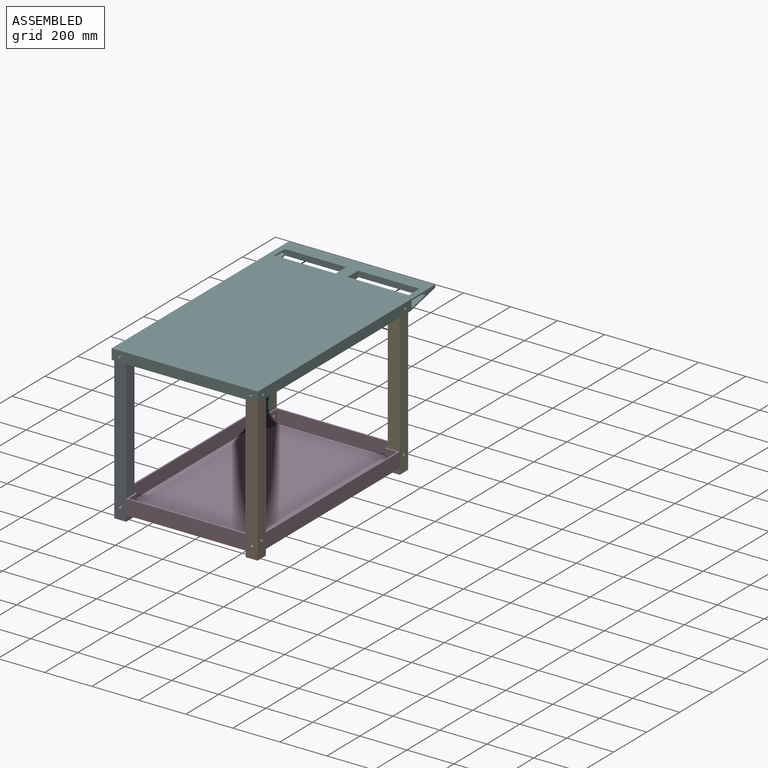
[diagram: assembled view]
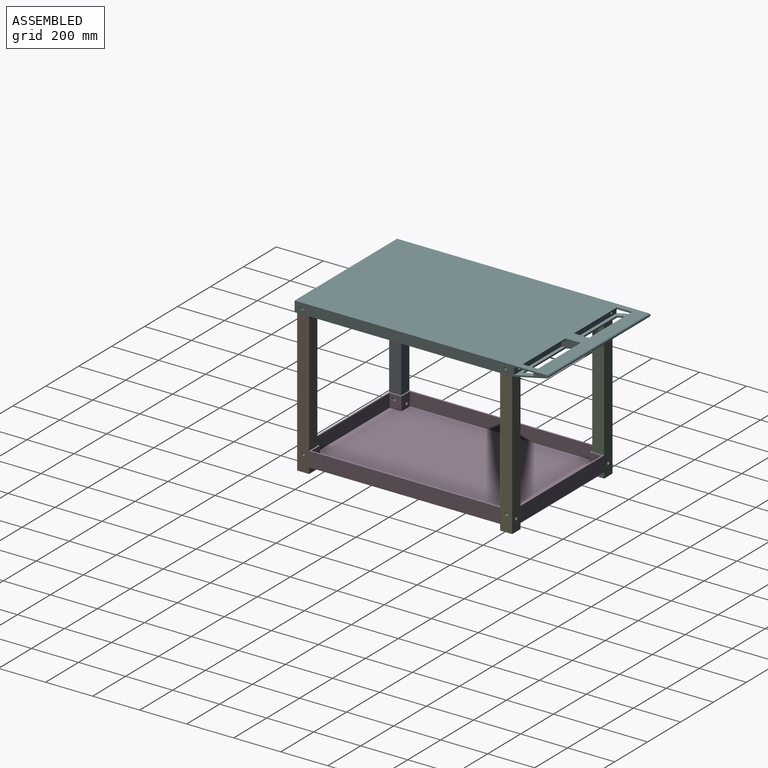
[diagram: assembled view, second angle]
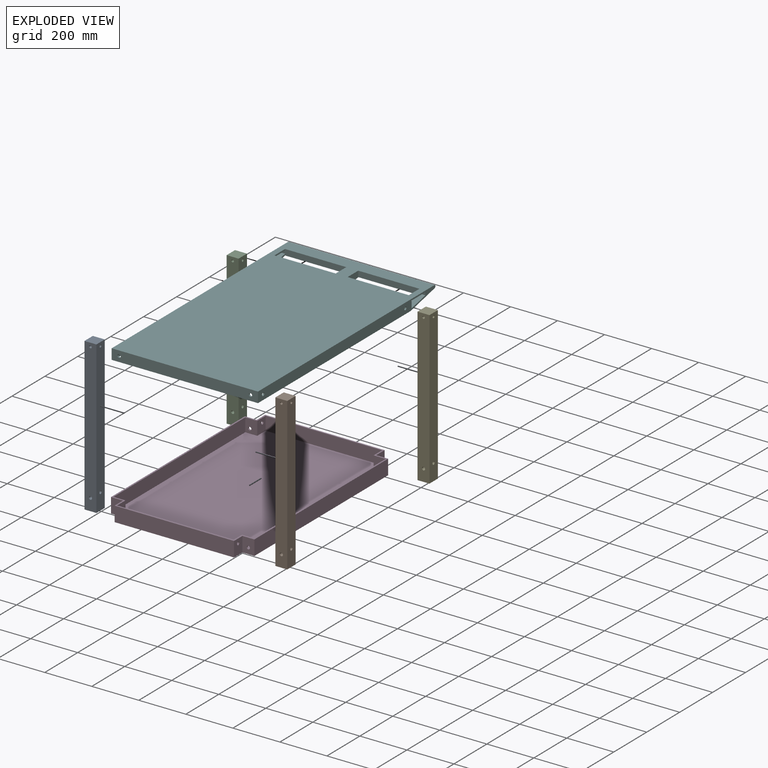
[diagram: exploded view]
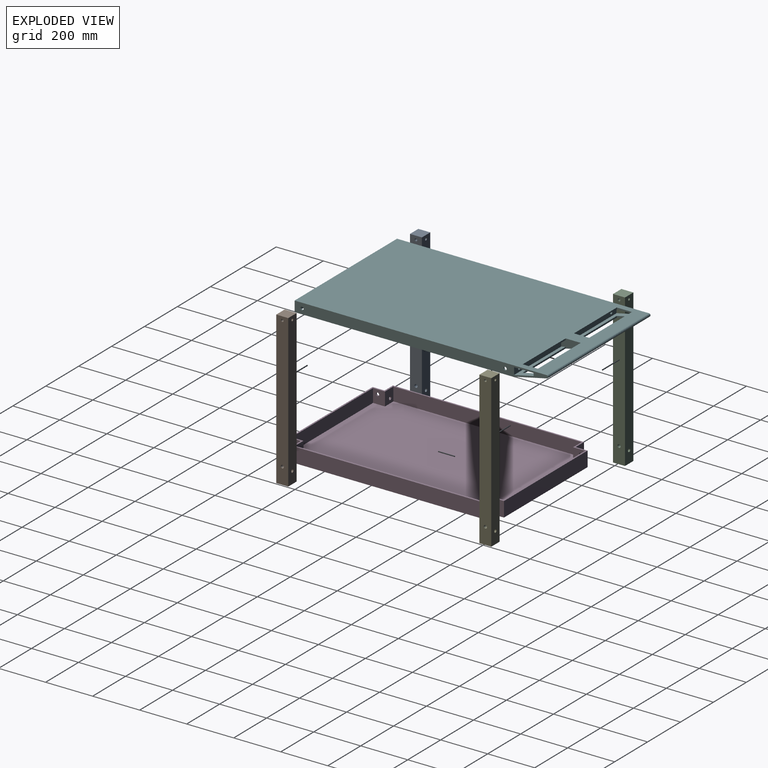
[diagram: exploded view, second angle]
ASSEMBLY  parts=6 mates=5
PART A: 18 faces, bbox 50.8x50.8x647.7 mm
  f0: plane 647.7x50.8mm, normal (-1,0,0), area 32670mm2, adj f1,f3,f4,f5,f6,f14
  f1: plane 647.7x50.8mm, normal (0,1,0), area 32670mm2, adj f0,f2,f4,f5,f9,f16
  f2: plane 647.7x50.8mm, normal (1,0,0), area 32670mm2, adj f1,f3,f4,f5,f6,f10
  f3: plane 647.7x50.8mm, normal (0,-1,0), area 32670mm2, adj f0,f2,f4,f5,f9,f12
  f4: plane 50.8x50.8mm, normal (0,0,-1), area 2192.7mm2, adj f0,f1,f2,f3,f7
  f5: plane 50.8x50.8mm, normal (0,0,1), area 2580.6mm2, adj f0,f1,f2,f3
  f6: cylinder r=6.75mm len=50.8mm, axis (1,0,0), area 2153.3mm2, adj f0,f2
  f7: cylinder r=11.11mm len=29.06mm, axis (0,0,-1), area 2029.3mm2, adj f4,f8
  f8: cone r=0mm half-angle=59deg, axis (0,0,-1), area 452.6mm2, adj f7
  f9: cylinder r=6.75mm len=50.8mm, axis (0,-1,0), area 2153.3mm2, adj f1,f3
  f10: cylinder r=5.36mm len=19.05mm, axis (1,0,0), area 641.3mm2, adj f2,f11
  f11: cone r=0mm half-angle=59deg, axis (1,0,0), area 105.2mm2, adj f10
  f12: cylinder r=5.36mm len=19.05mm, axis (0,-1,0), area 641.3mm2, adj f3,f13
  f13: cone r=0mm half-angle=59deg, axis (0,-1,0), area 105.2mm2, adj f12
  f14: cylinder r=5.36mm len=19.05mm, axis (-1,0,0), area 641.3mm2, adj f0,f15
  f15: cone r=0mm half-angle=59deg, axis (-1,0,0), area 105.2mm2, adj f14
  f16: cylinder r=5.36mm len=19.05mm, axis (0,1,0), area 641.3mm2, adj f1,f17
  f17: cone r=0mm half-angle=59deg, axis (0,1,0), area 105.2mm2, adj f16
PART B: same geometry as A
PART C: same geometry as A
PART D: 35 faces, bbox 609.6x914.4x63.5 mm
  f0: plane 508x63.5mm, normal (0,-1,0), area 32258mm2, adj f4,f5,f6,f13
  f1: plane 812.8x63.5mm, normal (-1,0,0), area 51612.8mm2, adj f4,f5,f9,f12
  f2: plane 508x63.5mm, normal (0,1,0), area 32258mm2, adj f4,f5,f8,f11
  f3: plane 812.8x63.5mm, normal (1,0,0), area 51612.8mm2, adj f4,f5,f7,f10
  f4: plane 914.4x609.6mm, normal (0,0,1), area 19193.5mm2, adj f0,f1,f2,f3,f6,f7,f8,f9
  f5: plane 914.4x609.6mm, normal (0,0,-1), area 547095.7mm2, adj f0,f1,f2,f3,f6,f7,f8,f9
  f6: plane 63.5x50.8mm, normal (1,0,0), area 3082.8mm2, adj f0,f4,f5,f7,f28
  f7: plane 63.5x50.8mm, normal (0,-1,0), area 3082.8mm2, adj f3,f4,f5,f6,f34
  f8: plane 63.5x50.8mm, normal (-1,0,0), area 3082.8mm2, adj f2,f4,f5,f9,f30
  f9: plane 63.5x50.8mm, normal (0,1,0), area 3082.8mm2, adj f1,f4,f5,f8,f32
  f10: plane 63.5x50.8mm, normal (0,1,0), area 3082.8mm2, adj f3,f4,f5,f11,f33
  f11: plane 63.5x50.8mm, normal (1,0,0), area 3082.8mm2, adj f2,f4,f5,f10,f29
  f12: plane 63.5x50.8mm, normal (0,-1,0), area 3082.8mm2, adj f1,f4,f5,f13,f31
  f13: plane 63.5x50.8mm, normal (-1,0,0), area 3082.8mm2, adj f0,f4,f5,f12,f27
  f14: plane 495.3x57.15mm, normal (0,1,0), area 28306.4mm2, adj f4,f18,f19,f26
  f15: plane 800.1x57.15mm, normal (1,0,0), area 45725.7mm2, adj f4,f18,f22,f25
  f16: plane 495.3x57.15mm, normal (0,-1,0), area 28306.4mm2, adj f4,f18,f21,f24
  f17: plane 800.1x57.15mm, normal (-1,0,0), area 45725.7mm2, adj f4,f18,f20,f23
  f18: plane 901.7x596.9mm, normal (0,0,1), area 527902.2mm2, adj f14,f15,f16,f17,f19,f20,f21,f22
  f19: plane 57.15x50.8mm, normal (-1,0,0), area 2760.2mm2, adj f4,f14,f18,f20,f28
  f20: plane 57.15x50.8mm, normal (0,1,0), area 2760.2mm2, adj f4,f17,f18,f19,f34
  f21: plane 57.15x50.8mm, normal (1,0,0), area 2760.2mm2, adj f4,f16,f18,f22,f30
  f22: plane 57.15x50.8mm, normal (0,-1,0), area 2760.2mm2, adj f4,f15,f18,f21,f32
  f23: plane 57.15x50.8mm, normal (0,-1,0), area 2760.2mm2, adj f4,f17,f18,f24,f33
  f24: plane 57.15x50.8mm, normal (-1,0,0), area 2760.2mm2, adj f4,f16,f18,f23,f29
  f25: plane 57.15x50.8mm, normal (0,1,0), area 2760.2mm2, adj f4,f15,f18,f26,f31
  f26: plane 57.15x50.8mm, normal (1,0,0), area 2760.2mm2, adj f4,f14,f18,f25,f27
  f27: cylinder r=6.75mm len=13.49mm, axis (1,0,0), area 269.2mm2, adj f13,f26
  f28: cylinder r=6.75mm len=13.49mm, axis (1,0,0), area 269.2mm2, adj f6,f19
  f29: cylinder r=6.75mm len=13.49mm, axis (1,0,0), area 269.2mm2, adj f11,f24
  f30: cylinder r=6.75mm len=13.49mm, axis (1,0,0), area 269.2mm2, adj f8,f21
  f31: cylinder r=6.75mm len=13.49mm, axis (0,-1,0), area 269.2mm2, adj f12,f25
  f32: cylinder r=6.75mm len=13.49mm, axis (0,-1,0), area 269.2mm2, adj f9,f22
  f33: cylinder r=6.75mm len=13.49mm, axis (0,-1,0), area 269.2mm2, adj f10,f23
  f34: cylinder r=6.75mm len=13.49mm, axis (0,-1,0), area 269.2mm2, adj f7,f20
PART E: same geometry as A
PART F: 38 faces, bbox 622.3x1077.9x44.5 mm
  f0: plane 1077.91x44.45mm, normal (1,0,0), area 43367.7mm2, adj f2,f3,f4,f10,f11,f12,f13,f16
  f1: plane 1077.91x44.45mm, normal (-1,0,0), area 43367.7mm2, adj f2,f3,f4,f11,f20,f21,f22,f23
  f2: plane 622.3x44.45mm, normal (0,-1,0), area 27375.3mm2, adj f0,f1,f3,f4,f34,f36
  f3: plane 927.1x622.3mm, normal (0,0,-1), area 19516.1mm2, adj f0,f1,f2,f5,f6,f7,f8,f11
  f4: plane 1071.56x622.3mm, normal (0,0,1), area 633356.5mm2, adj f0,f1,f2,f14,f15,f16,f17,f20
  f5: plane 914.4x38.1mm, normal (-1,0,0), area 34552.7mm2, adj f3,f6,f8,f9,f31,f33
  f6: plane 609.6x38.1mm, normal (0,-1,0), area 22939.8mm2, adj f3,f5,f7,f9,f35,f37
  f7: plane 914.4x38.1mm, normal (1,0,0), area 34552.7mm2, adj f3,f6,f8,f9,f30,f32
  f8: plane 609.6x38.1mm, normal (0,1,0), area 22939.8mm2, adj f3,f5,f7,f9,f34,f36
  f9: plane 914.4x609.6mm, normal (0,0,-1), area 557418.2mm2, adj f5,f6,f7,f8
  f10: plane 285.75x83.33mm, normal (0,-0.21,0.98), area 7243.7mm2, adj f0,f13,f16,f17,f18,f19
  f11: plane 622.3x145.81mm, normal (0,0.21,-0.98), area 58620.8mm2, adj f0,f1,f3,f16,f17,f18,f19,f20
  f12: plane 285.75x83.33mm, normal (0,0,-1), area 7076.4mm2, adj f0,f13,f14,f15,f16,f17
  f13: plane 285.75x30.21mm, normal (0,1,0), area 8489.8mm2, adj f0,f10,f12,f17,f35
  f14: plane 64.28x6.35mm, normal (-1,0,0), area 408.2mm2, adj f4,f12,f15,f16
  f15: plane 260.35x6.35mm, normal (0,1,0), area 1653.2mm2, adj f4,f12,f14,f17
  f16: plane 285.75x24.83mm, normal (0,-1,0), area 6769.2mm2, adj f0,f4,f10,f11,f12,f14,f17,f19
  f17: plane 83.33x38.89mm, normal (1,0,0), area 2584.1mm2, adj f4,f10,f11,f12,f13,f15,f16,f18
  f18: plane 260.35x6.5mm, normal (0,1,0), area 1692.3mm2, adj f10,f11,f17,f19
  f19: plane 64.28x20.56mm, normal (-1,0,0), area 417.9mm2, adj f10,f11,f16,f18
  f20: cylinder r=6.35mm len=622.3mm, axis (-1,0,0), area 11563.3mm2, adj f0,f1,f4,f11
  f21: plane 285.75x83.33mm, normal (0,-0.21,0.98), area 7243.7mm2, adj f1,f23,f26,f27,f28,f29
  f22: plane 285.75x83.33mm, normal (0,0,-1), area 7076.4mm2, adj f1,f23,f24,f25,f26,f27
  f23: plane 285.75x30.21mm, normal (0,1,0), area 8489.8mm2, adj f1,f21,f22,f27,f37
  f24: plane 64.28x6.35mm, normal (1,0,0), area 408.2mm2, adj f4,f22,f25,f26
  f25: plane 260.35x6.35mm, normal (0,1,0), area 1653.2mm2, adj f4,f22,f24,f27
  f26: plane 285.75x24.83mm, normal (0,-1,0), area 6769.2mm2, adj f1,f4,f11,f21,f22,f24,f27,f29
  f27: plane 83.33x38.89mm, normal (-1,0,0), area 2584.1mm2, adj f4,f11,f21,f22,f23,f25,f26,f28
  f28: plane 260.35x6.5mm, normal (0,1,0), area 1692.3mm2, adj f11,f21,f27,f29
  f29: plane 64.28x20.56mm, normal (1,0,0), area 417.9mm2, adj f11,f21,f26,f28
  f30: cylinder r=6.75mm len=13.49mm, axis (1,0,0), area 269.2mm2, adj f1,f7
  f31: cylinder r=6.75mm len=13.49mm, axis (1,0,0), area 269.2mm2, adj f0,f5
  f32: cylinder r=6.75mm len=13.49mm, axis (1,0,0), area 269.2mm2, adj f1,f7
  f33: cylinder r=6.75mm len=13.49mm, axis (1,0,0), area 269.2mm2, adj f0,f5
  f34: cylinder r=6.75mm len=13.49mm, axis (0,1,0), area 269.2mm2, adj f2,f8
  f35: cylinder r=6.75mm len=13.49mm, axis (0,1,0), area 538.3mm2, adj f6,f13
  f36: cylinder r=6.75mm len=13.49mm, axis (0,1,0), area 269.2mm2, adj f2,f8
  f37: cylinder r=6.75mm len=13.49mm, axis (0,1,0), area 538.3mm2, adj f6,f23
PLACE A rot(axis=(0,0,1),180deg) t=(0,-863.6,0)mm
PLACE B at identity
PLACE C rot(axis=(0,0,1),180deg) t=(0,0,0)mm
PLACE D at identity
PLACE E rot(axis=(0,0,-1),180deg) t=(558.8,0,0)mm
PLACE F at identity fixed
MATE fastened B.f10 <-> F.f30  axis (1,0,0) through (304.8,-431.8,-15.88)mm
MATE fastened C.f10 <-> F.f32  axis (-1,0,0) through (-304.8,431.8,-15.88)mm
MATE fastened D.f33 <-> B.f9  axis (0,-1,0) through (279.4,-406.4,-596.9)mm
MATE fastened E.f10 <-> F.f32  axis (1,0,0) through (304.8,431.8,-15.87)mm
MATE fastened F.f30 <-> A.f10  axis (1,0,0) through (-304.8,-431.8,-15.88)mm
